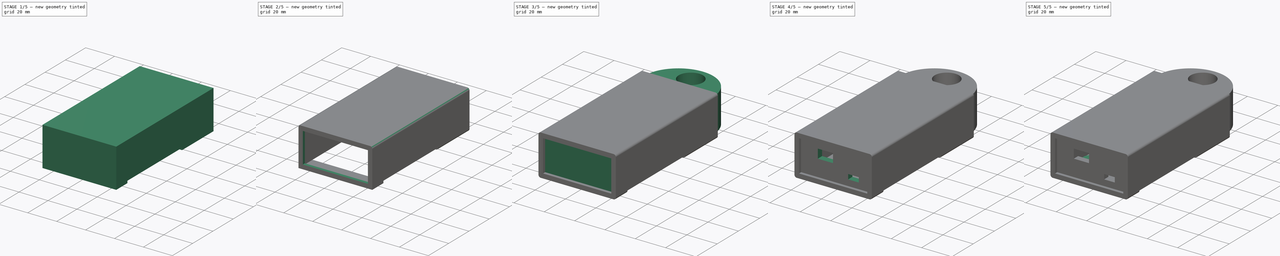
[diagram: build sequence overview — one tinted view per stage of 5, left to right]
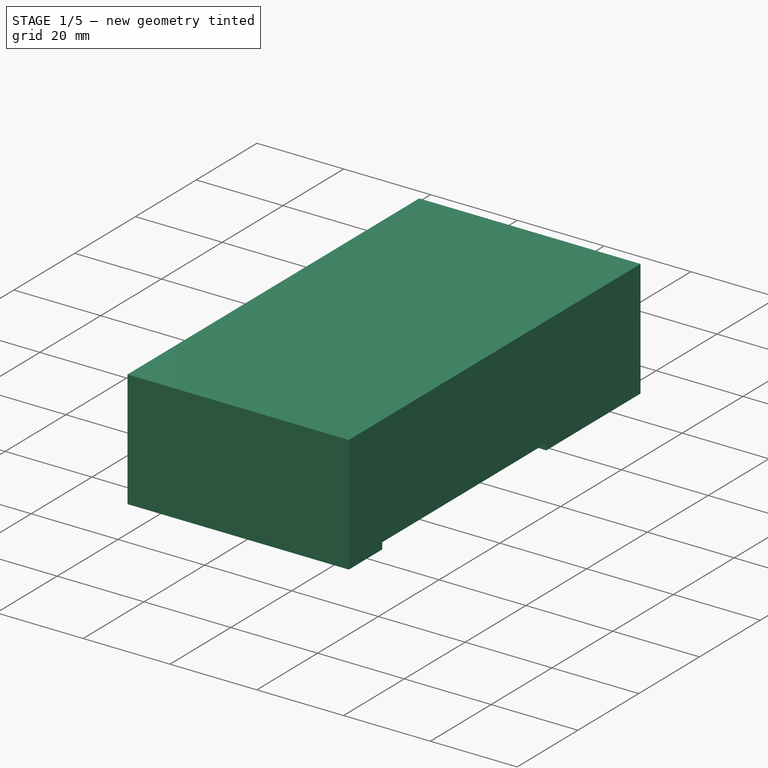
[diagram: stage 1 of 5 — iso view after this stage's code; geometry added in this stage tinted green]
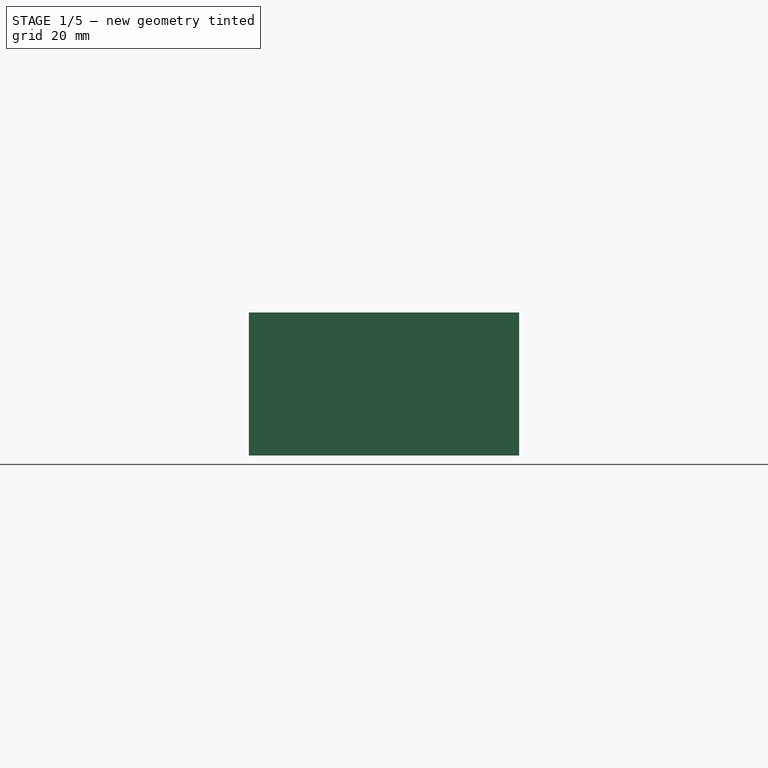
[diagram: stage 1 of 5 — front view after this stage's code; geometry added in this stage tinted green]
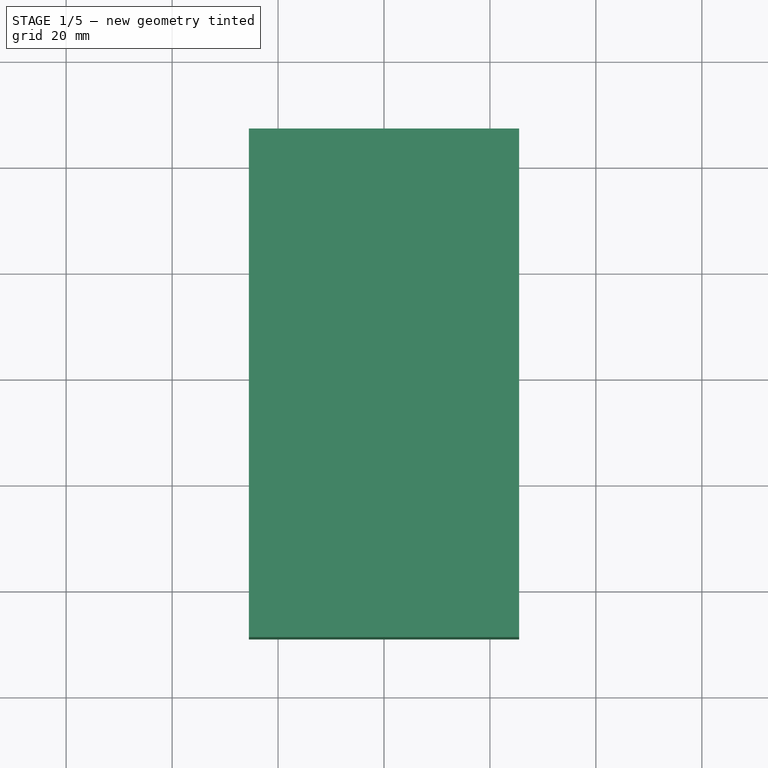
[diagram: stage 1 of 5 — top view after this stage's code; geometry added in this stage tinted green]
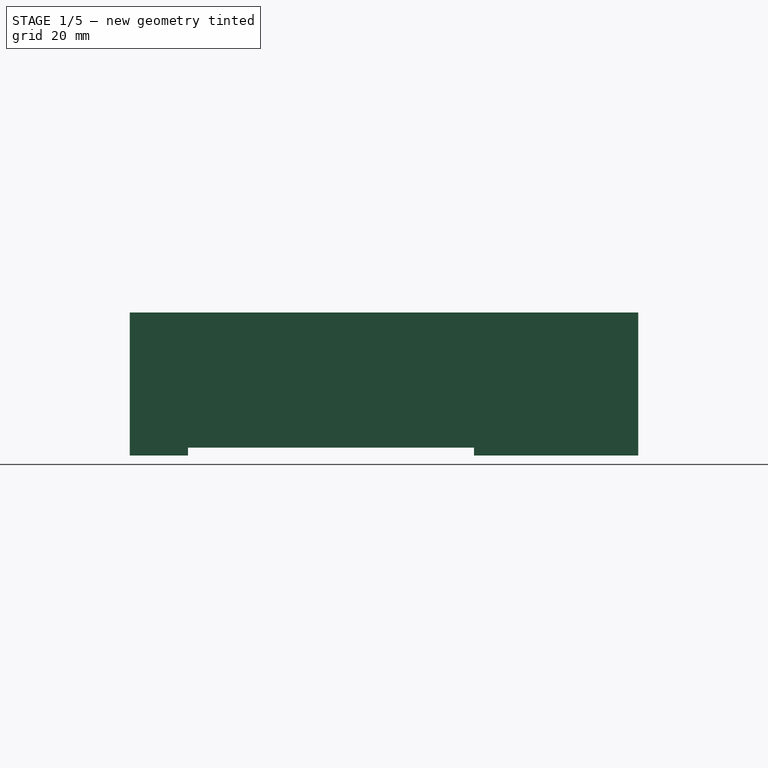
[diagram: stage 1 of 5 — right view after this stage's code; geometry added in this stage tinted green]
FCSTD DOCUMENT  (FreeCAD 0.19R24276 (Git))
Label: ThunderToGo
License: All rights reserved
LicenseURL: http://en.wikipedia.org/wiki/All_rights_reserved
objects: Sketcher::SketchObject×20, PartDesign::Pad×10, PartDesign::Pocket×10, PartDesign::Fillet×6, PartDesign::ShapeBinder×5, PartDesign::Body×5, PartDesign::Plane×4, PartDesign::Point×1
note: 87 computed .brp shape members not serialized (recipe doc carries the construction recipe); baked Part::Feature solids carry a one-line shape summary decoded from their .brp

FEATURE [PartDesign::Body] Body003  label="BackPlate"
  Group = -> [DatumPlane002,CopyPocket008,Sketch014,Pad005]
  Origin = -> Origin003
  Tip = -> Pad005
FEATURE [PartDesign::ShapeBinder] CopyPocket008001
  TraceSupport = false
FEATURE [PartDesign::Plane] DatumPlane003
  Length = 61.0995
  MapMode = 5
  Placement = pos=(0,-47,0) rot=(1,0,0;1.5708rad)
  ResizeMode = 0
  Support = -> [CopyPocket008001]
  Width = 60.0995
FEATURE [Sketcher::SketchObject] Sketch015
  ExternalGeometry = -> [CopyPocket008001]
  FullyConstrained = true
  MapMode = 5
  Placement = pos=(0,-47,0) rot=(1,0,0;1.5708rad)
  Support = -> [DatumPlane003]
  sketch-geometry (8):
    g0: LineSegment StartX=-23.5 StartY=23 StartZ=0 EndX=23.5 EndY=23 EndZ=0
    g1: LineSegment StartX=23.5 StartY=23 StartZ=0 EndX=23.5 EndY=-0.5 EndZ=0
    g2: LineSegment StartX=23.5 StartY=-0.5 StartZ=0 EndX=-23.5 EndY=-0.5 EndZ=0
    g3: LineSegment StartX=-23.5 StartY=-0.5 StartZ=0 EndX=-23.5 EndY=23 EndZ=0
    g4: LineSegment StartX=-25.5 StartY=25 StartZ=0 EndX=25.5 EndY=25 EndZ=0
    g5: LineSegment StartX=25.5 StartY=25 StartZ=0 EndX=25.5 EndY=-2 EndZ=0
    g6: LineSegment StartX=25.5 StartY=-2 StartZ=0 EndX=-25.5 EndY=-2 EndZ=0
    g7: LineSegment StartX=-25.5 StartY=-2 StartZ=0 EndX=-25.5 EndY=25 EndZ=0
  constraints (24):
    c: Coincident(g0,g1)
    c: Coincident(g1,g2)
    c: Coincident(g2,g3)
    c: Coincident(g3,g0)
    c: Horizontal(g0)
    c: Horizontal(g2)
    c: Vertical(g1)
    c: Vertical(g3)
    c: DistanceX(g-4,g0) = 0.5
    c: DistanceX(g0,g-6) = 0.5
    c: DistanceY(g2,g-6) = 0.5
    c: DistanceY(g-4,g0) = 3
    c: Coincident(g4,g5)
    c: Coincident(g5,g6)
    c: Coincident(g6,g7)
    c: Coincident(g7,g4)
    c: Horizontal(g4)
    c: Horizontal(g6)
    c: Vertical(g5)
    c: Vertical(g7)
    c: DistanceX(g1,g5) = 2
    c: DistanceX(g6,g2) = 2
    c: DistanceY(g0,g4) = 2
    c: DistanceY(g6,g-6) = 2
FEATURE [PartDesign::Pad] Pad006  label="LowerRim"
  Direction = (1,1,1)
  Length = 9
  Length2 = 100
  Placement = pos=(0,-47,0) rot=(1,0,0;1.5708rad)
  Profile = -> Sketch015
  Reversed = true
  Type = 0
FEATURE [Sketcher::SketchObject] Sketch016
  ExternalGeometry = -> [Pad006]
  FullyConstrained = true
  MapMode = 5
  Placement = pos=(0,-47,0) rot=(1,0,0;1.5708rad)
  Support = -> [DatumPlane003]
  sketch-geometry (4):
    g0: LineSegment StartX=-25.5 StartY=25 StartZ=0 EndX=25.5 EndY=25 EndZ=0
    g1: LineSegment StartX=25.5 StartY=25 StartZ=0 EndX=25.5 EndY=-2 EndZ=0
    g2: LineSegment StartX=25.5 StartY=-2 StartZ=0 EndX=-25.5 EndY=-2 EndZ=0
    g3: LineSegment StartX=-25.5 StartY=-2 StartZ=0 EndX=-25.5 EndY=25 EndZ=0
  constraints (10):
    c: Coincident(g0,g1)
    c: Coincident(g1,g2)
    c: Coincident(g2,g3)
    c: Coincident(g3,g0)
    c: Horizontal(g0)
    c: Horizontal(g2)
    c: Vertical(g1)
    c: Vertical(g3)
    c: Coincident(g0,g-3)
    c: Coincident(g1,g-4)
FEATURE [PartDesign::Pad] Pad007  label="Bottom"
  BaseFeature = -> Pad006
  Direction = (1,1,1)
  Length = 2
  Length2 = 100
  Placement = pos=(0,-47,0) rot=(1,0,0;1.5708rad)
  Profile = -> Sketch016
  Type = 0
FEATURE [Sketcher::SketchObject] Sketch017
  ExternalGeometry = -> [Pad007]
  FullyConstrained = true
  MapMode = 5
  Placement = pos=(0,-38,-4.3e-15) rot=(-1,0,0;1.5708rad)
  Support = -> [Pad007]
  sketch-geometry (8):
    g0: LineSegment StartX=23.5 StartY=0.5 StartZ=0 EndX=25.5 EndY=0.5 EndZ=0
    g1: LineSegment StartX=25.5 StartY=0.5 StartZ=0 EndX=25.5 EndY=-23 EndZ=0
    g2: LineSegment StartX=25.5 StartY=-23 StartZ=0 EndX=23.5 EndY=-23 EndZ=0
    g3: LineSegment StartX=23.5 StartY=-23 StartZ=0 EndX=23.5 EndY=0.5 EndZ=0
    g4: LineSegment StartX=-25.5 StartY=0.5 StartZ=0 EndX=-23.5 EndY=0.5 EndZ=0
    g5: LineSegment StartX=-23.5 StartY=0.5 StartZ=0 EndX=-23.5 EndY=-23 EndZ=0
    g6: LineSegment StartX=-23.5 StartY=-23 StartZ=0 EndX=-25.5 EndY=-23 EndZ=0
    g7: LineSegment StartX=-25.5 StartY=-23 StartZ=0 EndX=-25.5 EndY=0.5 EndZ=0
  constraints (20):
    c: Coincident(g0,g1)
    c: Coincident(g1,g2)
    c: Coincident(g2,g3)
    c: Coincident(g3,g0)
    c: Horizontal(g0)
    c: Horizontal(g2)
    c: Vertical(g1)
    c: Coincident(g0,g-4)
    c: Coincident(g2,g-4)
    c: DistanceX(g-3,g1) = 0
    c: Coincident(g4,g5)
    c: Coincident(g5,g6)
    c: Coincident(g6,g7)
    c: Coincident(g7,g4)
    c: Horizontal(g4)
    c: Horizontal(g6)
    c: Vertical(g7)
    c: Coincident(g5,g-5)
    c: Coincident(g4,g-5)
    c: DistanceX(g6,g-6) = 0
FEATURE [PartDesign::Pad] Pad008  label="SideWalls"
  BaseFeature = -> Pad007
  Direction = (1,1,1)
  Length = 54
  Length2 = 100
  Placement = pos=(0,-47,0) rot=(1,0,0;1.5708rad)
  Profile = -> Sketch017
  Type = 0
FEATURE [Sketcher::SketchObject] Sketch018
  ExternalGeometry = -> [Pad008]
  FullyConstrained = true
  MapMode = 5
  Placement = pos=(0,16,-3.29e-14) rot=(-1,0,0;1.5708rad)
  Support = -> [Pad008]
  sketch-geometry (8):
    g0: LineSegment StartX=-25.5 StartY=2 StartZ=0 EndX=25.5 EndY=2 EndZ=0
    g1: LineSegment StartX=25.5 StartY=2 StartZ=0 EndX=25.5 EndY=-25 EndZ=0
    g2: LineSegment StartX=25.5 StartY=-25 StartZ=0 EndX=-25.5 EndY=-25 EndZ=0
    g3: LineSegment StartX=-25.5 StartY=-25 StartZ=0 EndX=-25.5 EndY=2 EndZ=0
    g4: LineSegment StartX=-23.5 StartY=0.5 StartZ=0 EndX=23.5 EndY=0.5 EndZ=0
    g5: LineSegment StartX=23.5 StartY=0.5 StartZ=0 EndX=23.5 EndY=-23 EndZ=0
    g6: LineSegment StartX=23.5 StartY=-23 StartZ=0 EndX=-23.5 EndY=-23 EndZ=0
    g7: LineSegment StartX=-23.5 StartY=-23 StartZ=0 EndX=-23.5 EndY=0.5 EndZ=0
  constraints (20):
    c: Coincident(g0,g1)
    c: Coincident(g1,g2)
    c: Coincident(g2,g3)
    c: Coincident(g3,g0)
    c: Horizontal(g0)
    c: Horizontal(g2)
    c: Vertical(g1)
    c: Vertical(g3)
    c: Coincident(g0,g-5)
    c: Coincident(g1,g-6)
    c: Coincident(g4,g5)
    c: Coincident(g5,g6)
    c: Coincident(g6,g7)
    c: Coincident(g7,g4)
    c: Horizontal(g4)
    c: Horizontal(g6)
    c: Vertical(g5)
    c: Vertical(g7)
    c: Coincident(g4,g-7)
    c: Coincident(g5,g-9)
FEATURE [PartDesign::Pad] Pad009  label="TopSleeve"
  BaseFeature = -> Pad008
  Direction = (1,1,1)
  Length = 31
  Length2 = 100
  Placement = pos=(0,-47,0) rot=(1,0,0;1.5708rad)
  Profile = -> Sketch018
  Type = 0
FEATURE [Sketcher::SketchObject] Sketch019
  ExternalGeometry = -> [Pad009]
  FullyConstrained = true
  MapMode = 5
  Placement = pos=(0,-47,23) rot=(0,0,1;3.14159rad)
  Support = -> [Pad009]
  sketch-geometry (4):
    g0: LineSegment StartX=-25.5 StartY=-9 StartZ=0 EndX=25.5 EndY=-9 EndZ=0
    g1: LineSegment StartX=25.5 StartY=-9 StartZ=0 EndX=25.5 EndY=-63 EndZ=0
    g2: LineSegment StartX=25.5 StartY=-63 StartZ=0 EndX=-25.5 EndY=-63 EndZ=0
    g3: LineSegment StartX=-25.5 StartY=-63 StartZ=0 EndX=-25.5 EndY=-9 EndZ=0
  constraints (12):
    c: Coincident(g0,g1)
    c: Coincident(g1,g2)
    c: Coincident(g2,g3)
    c: Coincident(g3,g0)
    c: Horizontal(g0)
    c: Horizontal(g2)
    c: Vertical(g1)
    c: Vertical(g3)
    c: PointOnObject(g0,g-4)
    c: PointOnObject(g0,g-3)
    c: PointOnObject(g0,g-6)
    c: PointOnObject(g2,g-5)
FEATURE [PartDesign::Pad] Pad010  label="Back"
  BaseFeature = -> Pad009
  Direction = (1,1,1)
  Length = 2
  Length2 = 100
  Placement = pos=(0,-47,0) rot=(1,0,0;1.5708rad)
  Profile = -> Sketch019
  Type = 0
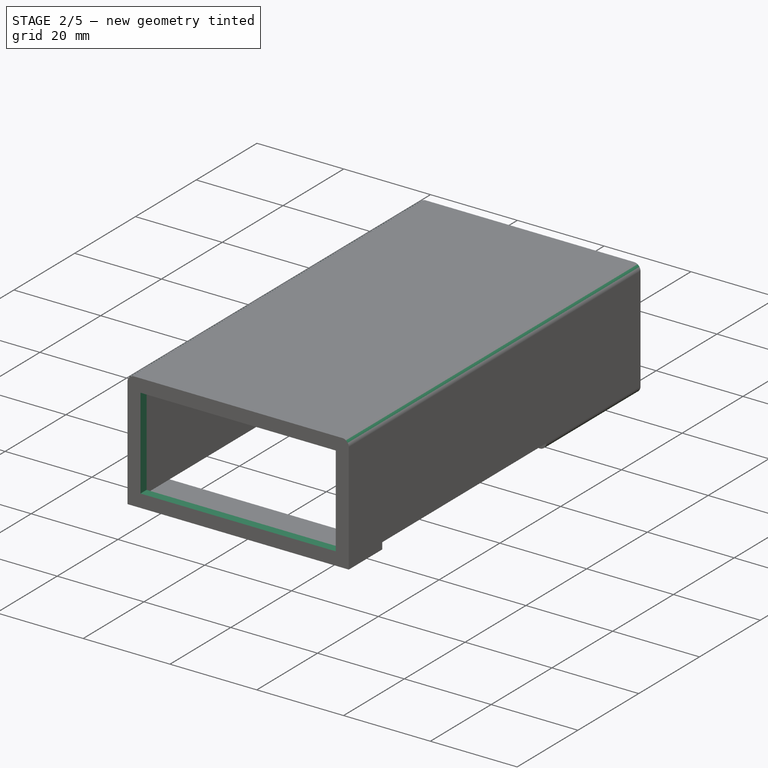
[diagram: stage 2 of 5 — iso view after this stage's code; geometry added in this stage tinted green]
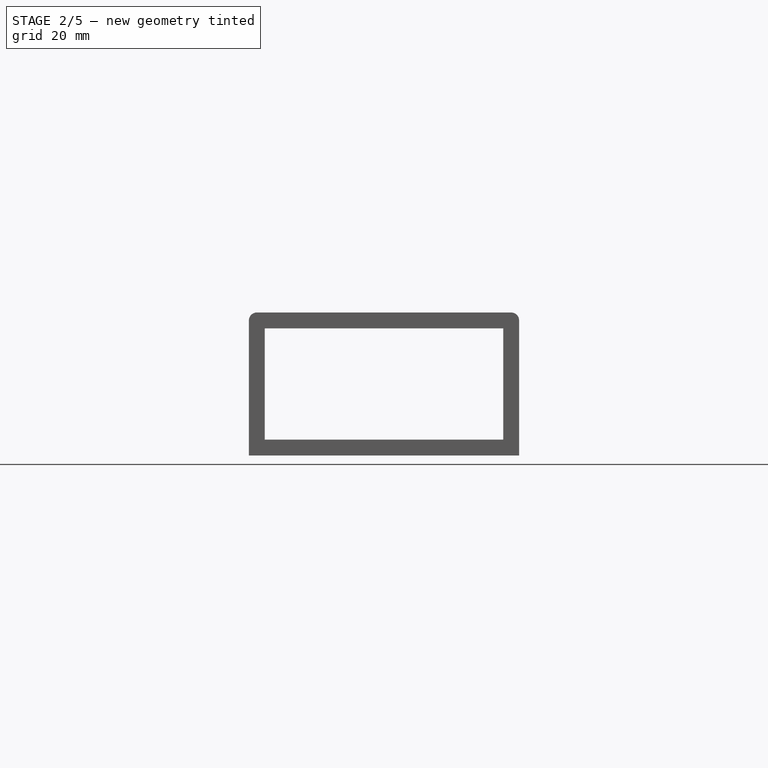
[diagram: stage 2 of 5 — front view after this stage's code; geometry added in this stage tinted green]
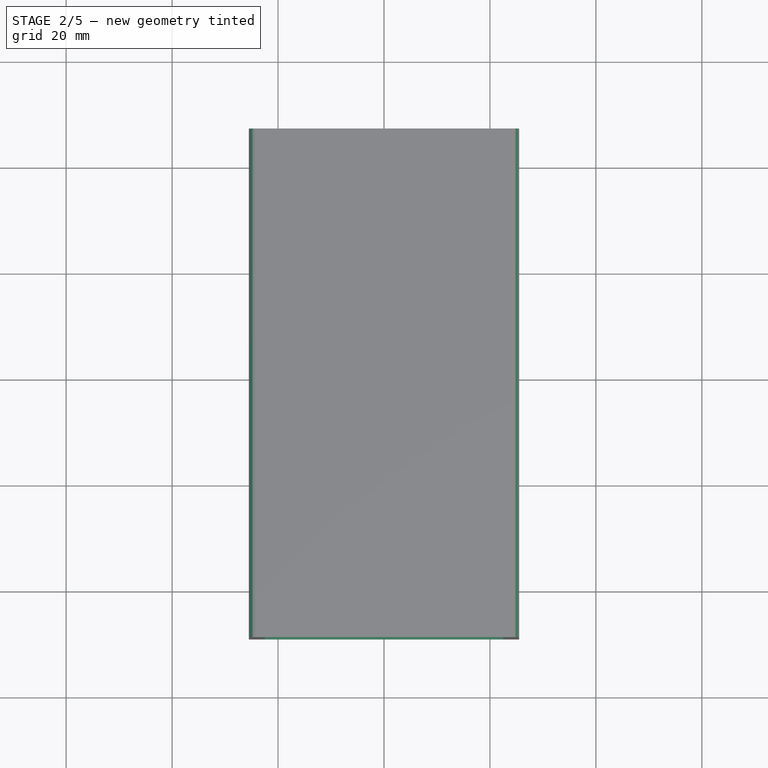
[diagram: stage 2 of 5 — top view after this stage's code; geometry added in this stage tinted green]
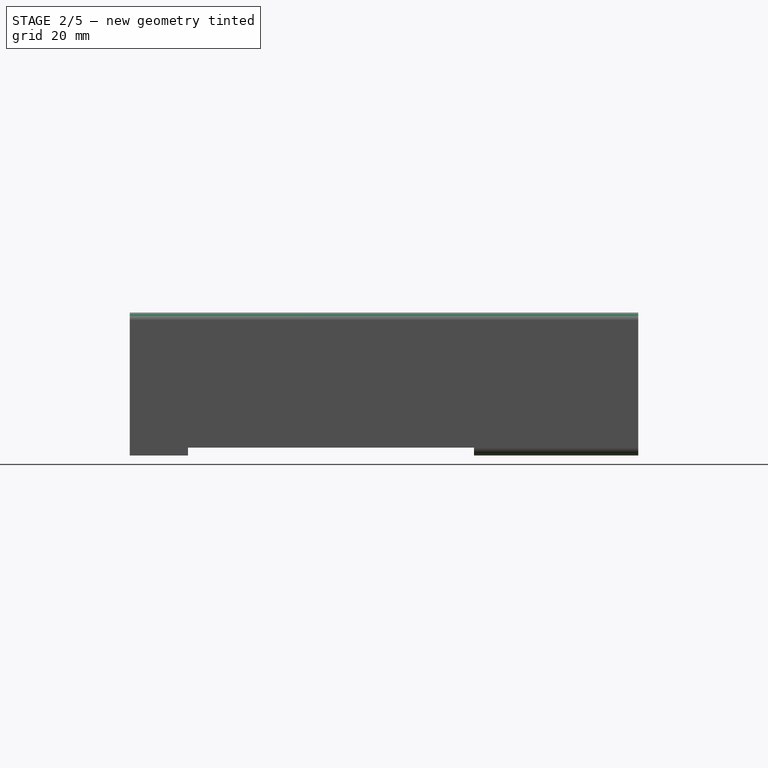
[diagram: stage 2 of 5 — right view after this stage's code; geometry added in this stage tinted green]
FEATURE [Sketcher::SketchObject] Sketch020
  ExternalGeometry = -> [Pad010]
  FullyConstrained = true
  MapMode = 5
  Placement = pos=(0,-49,1.4e-15) rot=(1,0,0;1.5708rad)
  Support = -> [Pad010]
  sketch-geometry (4):
    g0: LineSegment StartX=-22.5 StartY=22 StartZ=0 EndX=22.5 EndY=22 EndZ=0
    g1: LineSegment StartX=22.5 StartY=22 StartZ=0 EndX=22.5 EndY=1 EndZ=0
    g2: LineSegment StartX=22.5 StartY=1 StartZ=0 EndX=-22.5 EndY=1 EndZ=0
    g3: LineSegment StartX=-22.5 StartY=1 StartZ=0 EndX=-22.5 EndY=22 EndZ=0
  constraints (12):
    c: Coincident(g0,g1)
    c: Coincident(g1,g2)
    c: Coincident(g2,g3)
    c: Coincident(g3,g0)
    c: Horizontal(g0)
    c: Horizontal(g2)
    c: Vertical(g1)
    c: Vertical(g3)
    c: DistanceY(g0,g-4) = 3
    c: DistanceX(g1,g-3) = 3
    c: DistanceX(g-3,g2) = 3
    c: DistanceY(g-3,g2) = 3
FEATURE [PartDesign::Pocket] Pocket009
  BaseFeature = -> Pad010
  Length = 5
  Length2 = 100
  Placement = pos=(0,-47,0) rot=(1,0,0;1.5708rad)
  Profile = -> Sketch020
  Type = 0
FEATURE [PartDesign::Fillet] Fillet
  Base = -> Pocket009 [Edge53]
  BaseFeature = -> Pocket009
  Placement = pos=(0,-47,0) rot=(1,0,0;1.5708rad)
  Radius = 1.5
  SupportTransform = false
FEATURE [PartDesign::Fillet] Fillet001
  Base = -> Fillet [Edge24]
  BaseFeature = -> Fillet
  Placement = pos=(0,-47,0) rot=(1,0,0;1.5708rad)
  Radius = 1.5
  SupportTransform = false
FEATURE [PartDesign::Fillet] Fillet002
  Base = -> Fillet001 [Edge21]
  BaseFeature = -> Fillet001
  Placement = pos=(0,-47,0) rot=(1,0,0;1.5708rad)
  Radius = 1.5
  SupportTransform = false
FEATURE [PartDesign::Fillet] Fillet003
  Base = -> Fillet002 [Edge21]
  BaseFeature = -> Fillet002
  Placement = pos=(0,-47,0) rot=(1,0,0;1.5708rad)
  Radius = 1.5
  SupportTransform = false
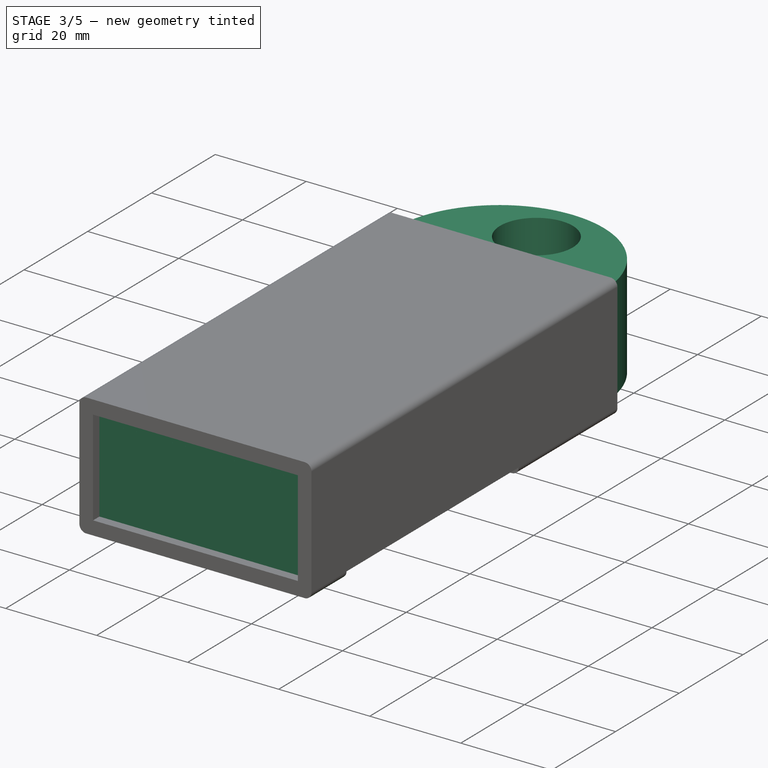
[diagram: stage 3 of 5 — iso view after this stage's code; geometry added in this stage tinted green]
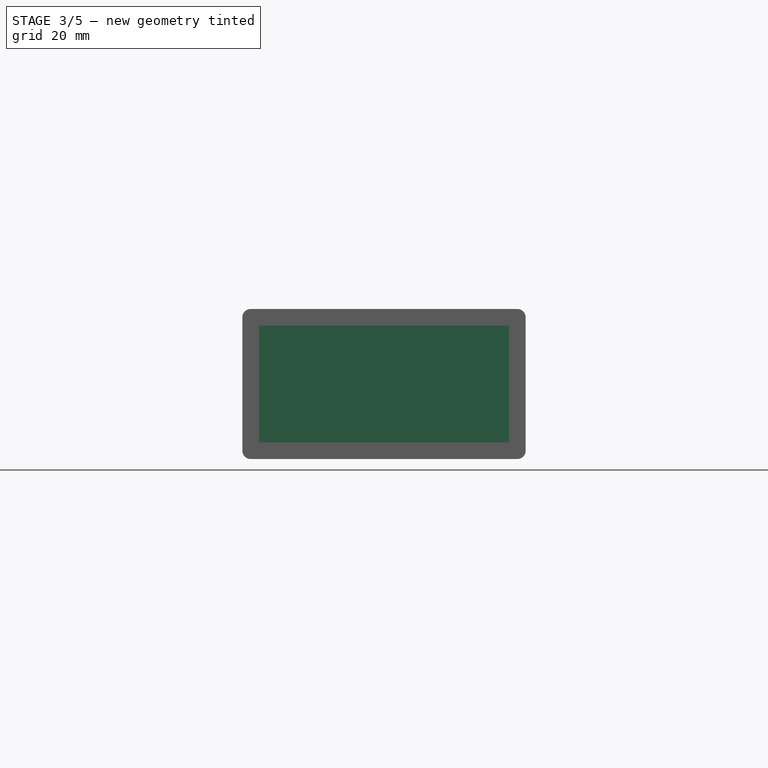
[diagram: stage 3 of 5 — front view after this stage's code; geometry added in this stage tinted green]
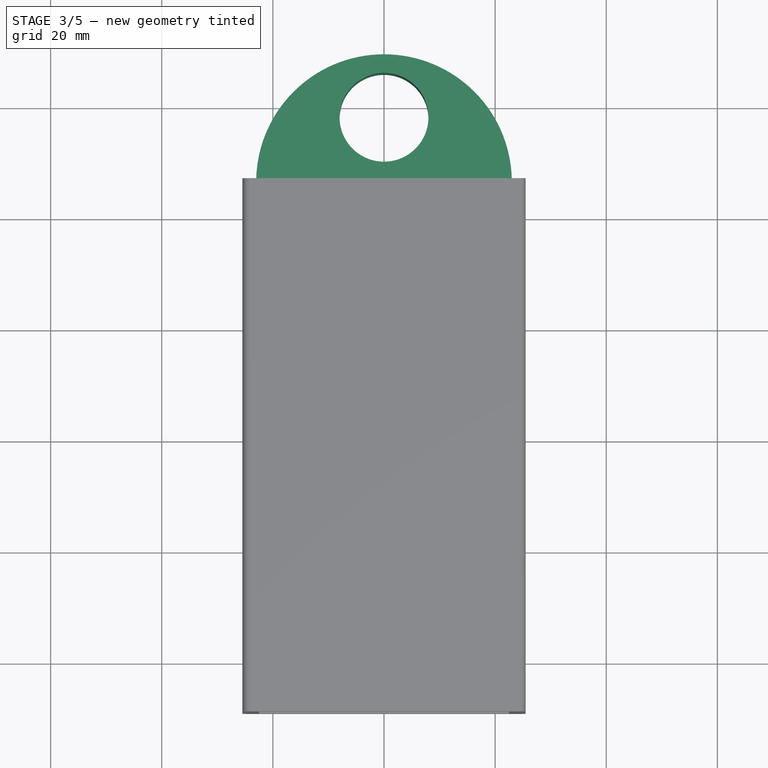
[diagram: stage 3 of 5 — top view after this stage's code; geometry added in this stage tinted green]
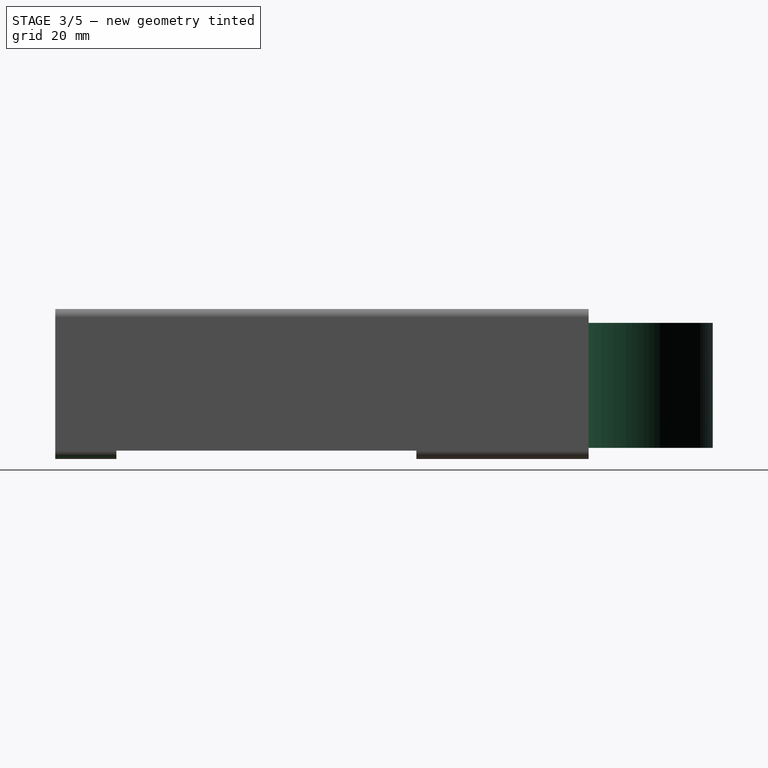
[diagram: stage 3 of 5 — right view after this stage's code; geometry added in this stage tinted green]
FEATURE [Sketcher::SketchObject] Sketch
  FullyConstrained = true
  MapMode = 5
  Support = -> [XY_Plane]
  sketch-geometry (5):
    g0: LineSegment StartX=23 StartY=47 StartZ=0 EndX=23 EndY=-47 EndZ=0
    g1: LineSegment StartX=23 StartY=-47 StartZ=0 EndX=-23 EndY=-47 EndZ=0
    g2: LineSegment StartX=-23 StartY=-47 StartZ=0 EndX=-23 EndY=47 EndZ=0
    g3: LineSegment StartX=0 StartY=46.3317 StartZ=0 EndX=0 EndY=69.3317 EndZ=0
    g4: ArcOfCircle CenterX=1.1e-15 CenterY=46.3217 CenterZ=0 NormalX=0 NormalY=0 NormalZ=1 AngleXU=0 Radius=23.01 StartAngle=0.0294831 EndAngle=3.11211
  constraints (15):
    c: Coincident(g0,g1)
    c: Coincident(g1,g2)
    c: Horizontal(g1)
    c: Vertical(g2)
    c: DistanceX(g2,g0) = 46
    c: DistanceY(g0,g0) = 94
    c: Symmetric(g2,g0,g-2)
    c: Symmetric(g0,g0,g-1)
    c: Vertical(g3)
    c: DistanceY(g3,g3) = 23
    c: PointOnObject(g3,g-2)
    c: Coincident(g4,g2)
    c: Coincident(g4,g0)
    c: PointOnObject(g3,g4)
    c: Radius(g4) = 23.01
FEATURE [PartDesign::Pad] Pad  label="MainVolume"
  Direction = (1,1,1)
  Length = 20
  Length2 = 100
  Profile = -> Sketch
  Type = 0
FEATURE [Sketcher::SketchObject] Sketch001
  ExternalGeometry = -> [Pad]
  FullyConstrained = true
  MapMode = 5
  Placement = pos=(0,0,20) rot=(0,0,1;0rad)
  Support = -> [Pad]
  sketch-geometry (3):
    g0: LineSegment StartX=-23 StartY=47 StartZ=0 EndX=23 EndY=47 EndZ=0
    g1: LineSegment StartX=0 StartY=47 StartZ=0 EndX=0 EndY=58 EndZ=0
    g2: Circle CenterX=0 CenterY=58 CenterZ=0 NormalX=0 NormalY=0 NormalZ=1 AngleXU=0 Radius=8
  constraints (8):
    c: Coincident(g0,g-3)
    c: Coincident(g0,g-3)
    c: PointOnObject(g1,g0)
    c: Vertical(g1)
    c: PointOnObject(g1,g-2)
    c: DistanceY(g1,g1) = 11
    c: Coincident(g2,g1)
    c: Radius(g2) = 8
FEATURE [PartDesign::Pocket] Pocket  label="HookHole"
  BaseFeature = -> Pad
  Length = 5
  Length2 = 100
  Profile = -> Sketch001
  Type = 1
FEATURE [Sketcher::SketchObject] Sketch002
  FullyConstrained = true
  MapMode = 5
  Placement = pos=(0,0,20) rot=(0,0,1;0rad)
  Support = -> [Pocket]
  sketch-geometry (4):
    g0: LineSegment StartX=-20.5 StartY=43 StartZ=0 EndX=20.5 EndY=43 EndZ=0
    g1: LineSegment StartX=20.5 StartY=43 StartZ=0 EndX=20.5 EndY=-43 EndZ=0
    g2: LineSegment StartX=20.5 StartY=-43 StartZ=0 EndX=-20.5 EndY=-43 EndZ=0
    g3: LineSegment StartX=-20.5 StartY=-43 StartZ=0 EndX=-20.5 EndY=43 EndZ=0
  constraints (10):
    c: Coincident(g0,g1)
    c: Coincident(g1,g2)
    c: Coincident(g2,g3)
    c: Coincident(g3,g0)
    c: Horizontal(g2)
    c: Vertical(g3)
    c: Symmetric(g0,g0,g-2)
    c: Symmetric(g0,g1,g-1)
    c: DistanceX(g2,g2) = 41
    c: DistanceY(g1,g1) = 86
FEATURE [PartDesign::Pocket] Pocket001  label="BoardCavity"
  BaseFeature = -> Pocket
  Length = 18
  Length2 = 100
  Profile = -> Sketch002
  Type = 0
FEATURE [PartDesign::Body] Body
  Group = -> [Sketch,Pad,Sketch001,Pocket,Sketch002,Pocket001,Sketch003,Pocket002,Sketch004,Pocket003,Sketch005,Pocket004,Sketch006,Pocket005,Sketch007,Pocket006,Sketch012,Pocket007,Sketch013,Pocket008]
  Origin = -> Origin
  Tip = -> Pocket008
FEATURE [PartDesign::ShapeBinder] CopyPocket008
  TraceSupport = false
FEATURE [PartDesign::Plane] DatumPlane002
  Length = 65.2453
  MapMode = 5
  Placement = pos=(0,0,20) rot=(0,0,1;0rad)
  ResizeMode = 0
  Support = -> [CopyPocket008]
  Width = 131.456
FEATURE [Sketcher::SketchObject] Sketch014
  ExternalGeometry = -> [CopyPocket008]
  FullyConstrained = true
  MapMode = 5
  Placement = pos=(0,0,20) rot=(0,0,1;0rad)
  Support = -> [DatumPlane002]
  sketch-geometry (5):
    g0: Circle CenterX=0 CenterY=58 CenterZ=0 NormalX=0 NormalY=0 NormalZ=1 AngleXU=0 Radius=8
    g1: LineSegment StartX=-23 StartY=47 StartZ=0 EndX=-23 EndY=-47 EndZ=0
    g2: LineSegment StartX=-23 StartY=-47 StartZ=0 EndX=23 EndY=-47 EndZ=0
    g3: LineSegment StartX=23 StartY=-47 StartZ=0 EndX=23 EndY=47 EndZ=0
    g4: ArcOfCircle CenterX=1.3e-15 CenterY=46.3217 CenterZ=0 NormalX=0 NormalY=0 NormalZ=1 AngleXU=0 Radius=23.01 StartAngle=0.0294831 EndAngle=3.11211
  constraints (11):
    c: Coincident(g0,g-4)
    c: Diameter(g0) = 16
    c: Coincident(g1,g-7)
    c: Coincident(g1,g-7)
    c: Coincident(g2,g1)
    c: Coincident(g2,g-6)
    c: Coincident(g3,g2)
    c: Coincident(g3,g-5)
    c: Coincident(g4,g1)
    c: Coincident(g4,g3)
    c: Tangent(g4,g-5)
FEATURE [PartDesign::Pad] Pad005  label="MainBody"
  Direction = (1,1,1)
  Length = 2.5
  Length2 = 100
  Placement = pos=(0,0,20) rot=(0,0,1;0rad)
  Profile = -> Sketch014
  Type = 0
FEATURE [PartDesign::Fillet] Fillet004
  Base = -> Fillet003 [Edge71]
  BaseFeature = -> Fillet003
  Placement = pos=(0,-47,0) rot=(1,0,0;1.5708rad)
  Radius = 1.5
  SupportTransform = false
FEATURE [PartDesign::Fillet] Fillet005
  Base = -> Fillet004 [Edge33]
  BaseFeature = -> Fillet004
  Placement = pos=(0,-47,0) rot=(1,0,0;1.5708rad)
  Radius = 1.5
  SupportTransform = false
FEATURE [PartDesign::Body] Body004  label="Sleeve"
  Group = -> [DatumPlane003,CopyPocket008001,Sketch015,Pad006,Sketch016,Pad007,Sketch017,Pad008,Sketch018,Pad009,Sketch019,Pad010,Sketch020,Pocket009,Fillet,Fillet001,Fillet002,Fillet003,Fillet004,Fillet005]
  Origin = -> Origin004
  Tip = -> Fillet005
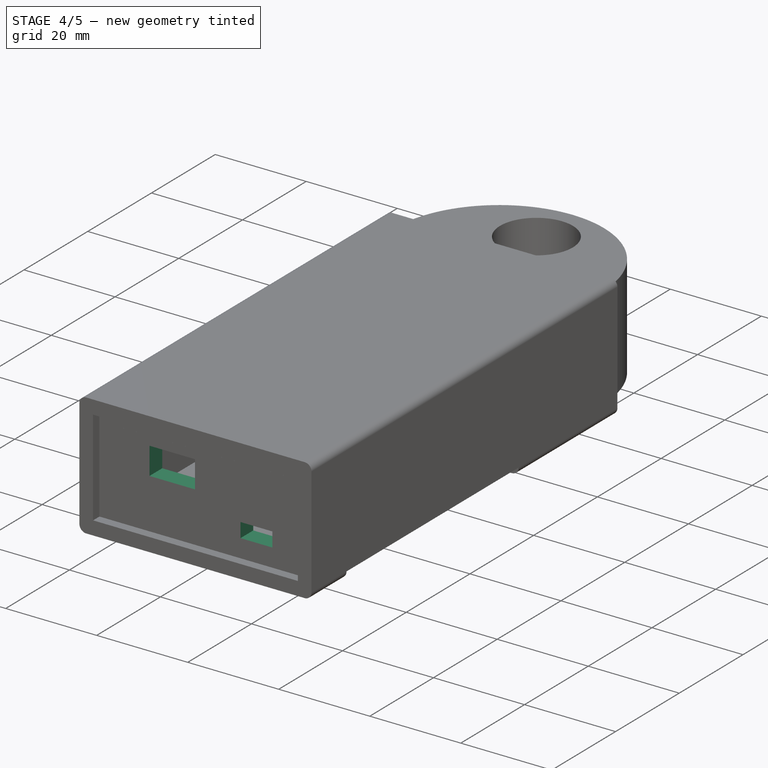
[diagram: stage 4 of 5 — iso view after this stage's code; geometry added in this stage tinted green]
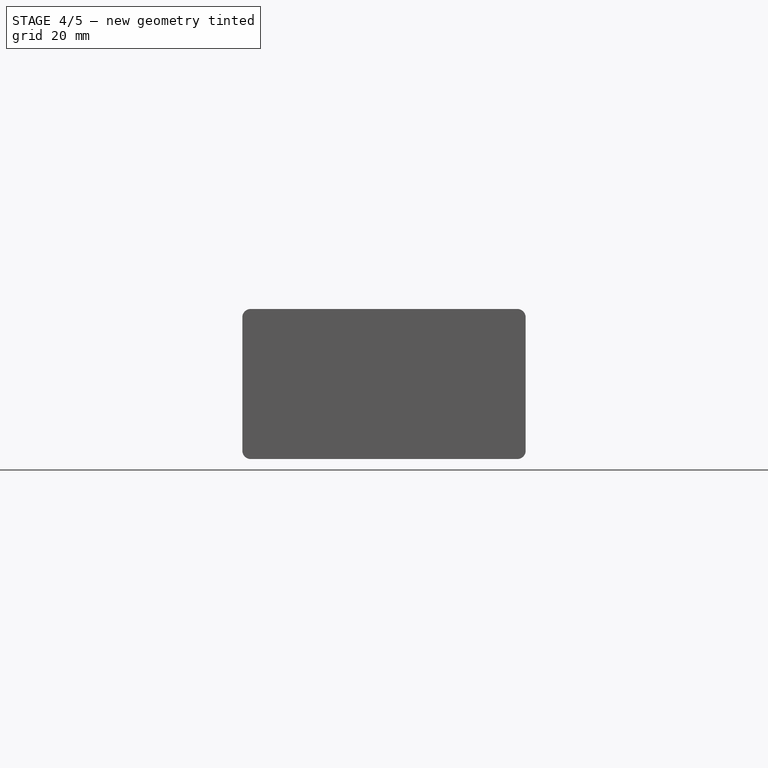
[diagram: stage 4 of 5 — front view after this stage's code; geometry added in this stage tinted green]
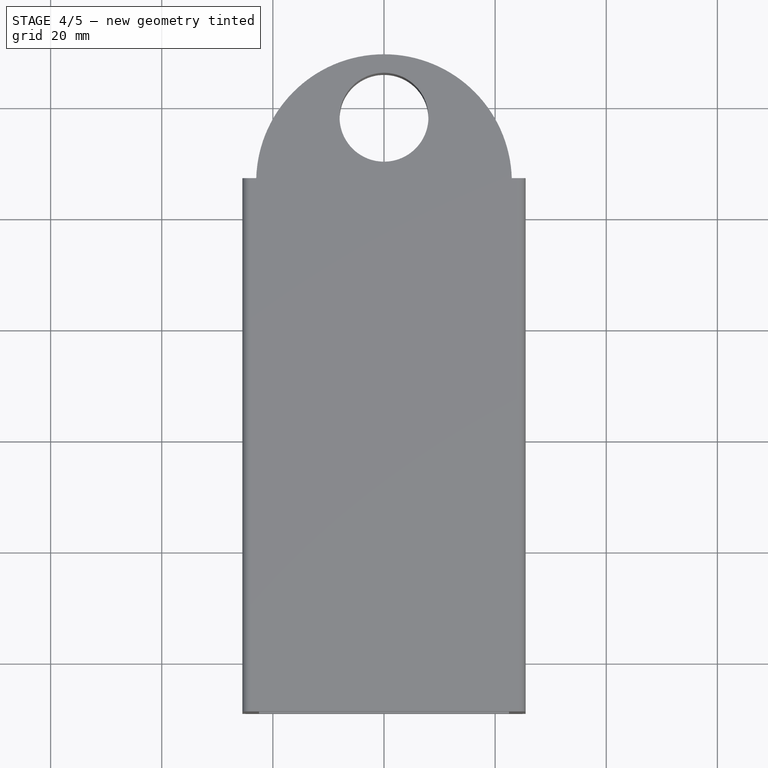
[diagram: stage 4 of 5 — top view after this stage's code; geometry added in this stage tinted green]
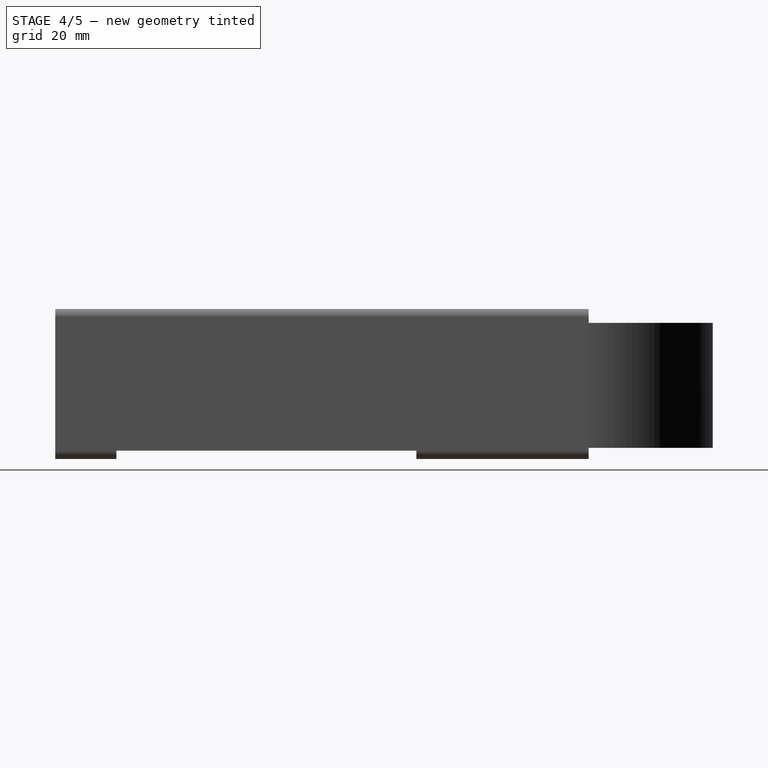
[diagram: stage 4 of 5 — right view after this stage's code; geometry added in this stage tinted green]
FEATURE [Sketcher::SketchObject] Sketch003
  ExternalGeometry = -> [Pocket001]
  FullyConstrained = true
  MapMode = 5
  Placement = pos=(0,0,2) rot=(0,0,1;0rad)
  Support = -> [Pocket001]
  sketch-geometry (4):
    g0: LineSegment StartX=-13 StartY=3.5 StartZ=0 EndX=13 EndY=3.5 EndZ=0
    g1: LineSegment StartX=13 StartY=3.5 StartZ=0 EndX=13 EndY=-11 EndZ=0
    g2: LineSegment StartX=13 StartY=-11 StartZ=0 EndX=-13 EndY=-11 EndZ=0
    g3: LineSegment StartX=-13 StartY=-11 StartZ=0 EndX=-13 EndY=3.5 EndZ=0
  constraints (11):
    c: Coincident(g0,g1)
    c: Coincident(g1,g2)
    c: Coincident(g2,g3)
    c: Coincident(g3,g0)
    c: Horizontal(g2)
    c: Vertical(g1)
    c: Vertical(g3)
    c: DistanceY(g-4,g1) = 32
    c: DistanceY(g1,g1) = 14.5
    c: DistanceX(g0,g0) = 26
    c: Symmetric(g0,g0,g-2)
FEATURE [PartDesign::Pocket] Pocket002  label="DisplayWindow"
  BaseFeature = -> Pocket001
  Length = 5
  Length2 = 100
  Profile = -> Sketch003
  Type = 0
FEATURE [Sketcher::SketchObject] Sketch004
  ExternalGeometry = -> [Pocket002]
  FullyConstrained = true
  MapMode = 5
  Placement = pos=(0,0,2) rot=(0,0,1;0rad)
  Support = -> [Pocket002]
  sketch-geometry (1):
    g0: Circle CenterX=0 CenterY=-27 CenterZ=0 NormalX=0 NormalY=0 NormalZ=1 AngleXU=0 Radius=4
  constraints (3):
    c: DistanceY(g-3,g0) = 16
    c: PointOnObject(g0,g-2)
    c: Radius(g0) = 4
FEATURE [PartDesign::Pocket] Pocket003  label="ButtonOpening"
  BaseFeature = -> Pocket002
  Length = 5
  Length2 = 100
  Profile = -> Sketch004
  Type = 0
FEATURE [Sketcher::SketchObject] Sketch005
  ExternalGeometry = -> [Pocket003]
  FullyConstrained = true
  MapMode = 5
  Placement = pos=(0,-43,0) rot=(0,0.707107,0.707107;3.14159rad)
  Support = -> [Pocket003]
  sketch-geometry (4):
    g0: LineSegment StartX=-15.5 StartY=8.2 StartZ=0 EndX=-8.5 EndY=8.2 EndZ=0
    g1: LineSegment StartX=-8.5 StartY=8.2 StartZ=0 EndX=-8.5 EndY=5 EndZ=0
    g2: LineSegment StartX=-8.5 StartY=5 StartZ=0 EndX=-15.5 EndY=5 EndZ=0
    g3: LineSegment StartX=-15.5 StartY=5 StartZ=0 EndX=-15.5 EndY=8.2 EndZ=0
  constraints (12):
    c: Coincident(g0,g1)
    c: Coincident(g1,g2)
    c: Coincident(g2,g3)
    c: Coincident(g3,g0)
    c: Horizontal(g0)
    c: Horizontal(g2)
    c: Vertical(g1)
    c: Vertical(g3)
    c: DistanceX(g-4,g2) = 5
    c: DistanceY(g-4,g2) = 3
    c: DistanceY(g1,g1) = 3.2
    c: DistanceX(g0,g0) = 7
FEATURE [PartDesign::Pocket] Pocket004  label="SwitchHole"
  BaseFeature = -> Pocket003
  Length = 5
  Length2 = 100
  Profile = -> Sketch005
  Type = 1
FEATURE [Sketcher::SketchObject] Sketch006
  ExternalGeometry = -> [Pocket004]
  FullyConstrained = true
  MapMode = 5
  Placement = pos=(0,-43,0) rot=(0,0.707107,0.707107;3.14159rad)
  Support = -> [Pocket004]
  sketch-geometry (4):
    g0: LineSegment StartX=1.5 StartY=18 StartZ=0 EndX=11.5 EndY=18 EndZ=0
    g1: LineSegment StartX=11.5 StartY=18 StartZ=0 EndX=11.5 EndY=12 EndZ=0
    g2: LineSegment StartX=11.5 StartY=12 StartZ=0 EndX=1.5 EndY=12 EndZ=0
    g3: LineSegment StartX=1.5 StartY=12 StartZ=0 EndX=1.5 EndY=18 EndZ=0
  constraints (12):
    c: Coincident(g0,g1)
    c: Coincident(g1,g2)
    c: Coincident(g2,g3)
    c: Coincident(g3,g0)
    c: Horizontal(g0)
    c: Horizontal(g2)
    c: Vertical(g1)
    c: Vertical(g3)
    c: DistanceX(g0,g-3) = 9
    c: DistanceY(g-4,g1) = 10
    c: DistanceX(g0,g0) = 10
    c: DistanceY(g3,g3) = 6
FEATURE [PartDesign::Pocket] Pocket005  label="USBHole"
  BaseFeature = -> Pocket004
  Length = 5
  Length2 = 100
  Profile = -> Sketch006
  Type = 1
FEATURE [Sketcher::SketchObject] Sketch007
  ExternalGeometry = -> [Pocket005]
  FullyConstrained = true
  MapMode = 5
  Placement = pos=(0,0,2) rot=(0,0,1;0rad)
  Support = -> [Pocket005]
  sketch-geometry (1):
    g0: Circle CenterX=-13.5 CenterY=-28 CenterZ=0 NormalX=0 NormalY=0 NormalZ=1 AngleXU=0 Radius=2.5
  constraints (3):
    c: DistanceX(g-4,g0) = 7
    c: DistanceY(g-4,g0) = 15
    c: Diameter(g0) = 5
FEATURE [PartDesign::Pocket] Pocket006  label="LEDHole"
  BaseFeature = -> Pocket005
  Length = 5
  Length2 = 100
  Profile = -> Sketch007
  Type = 1
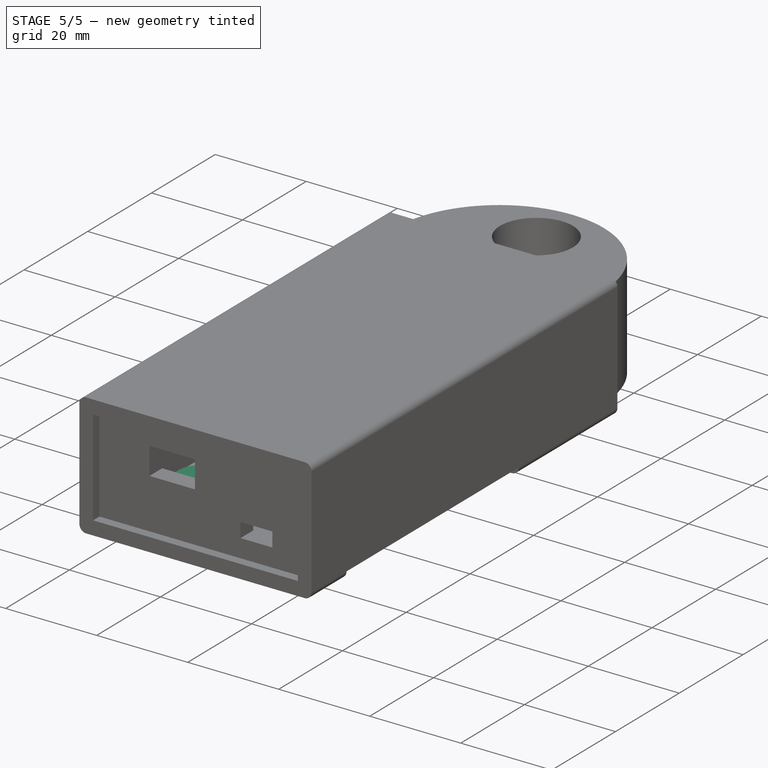
[diagram: stage 5 of 5 — iso view after this stage's code; geometry added in this stage tinted green]
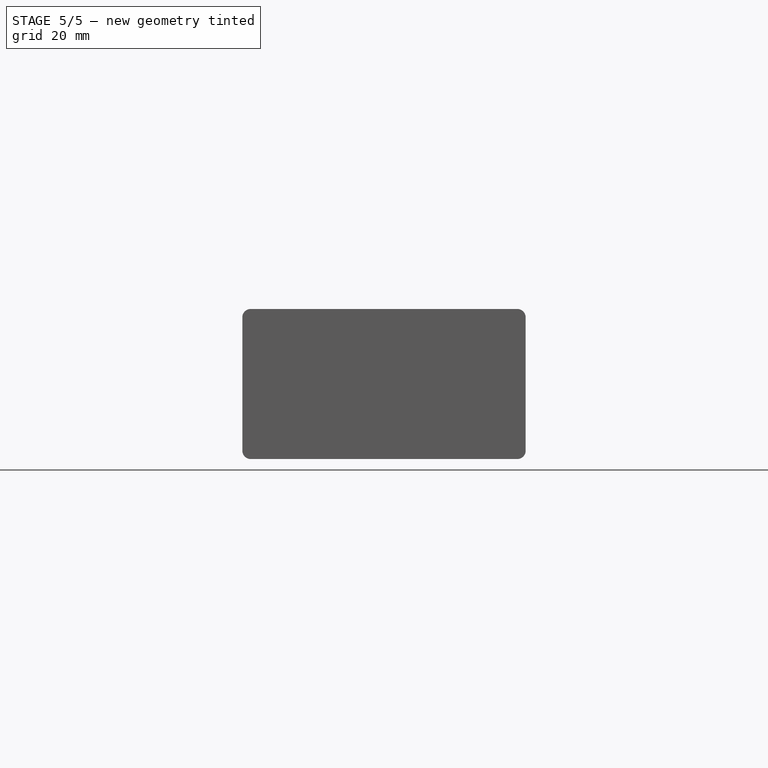
[diagram: stage 5 of 5 — front view after this stage's code; geometry added in this stage tinted green]
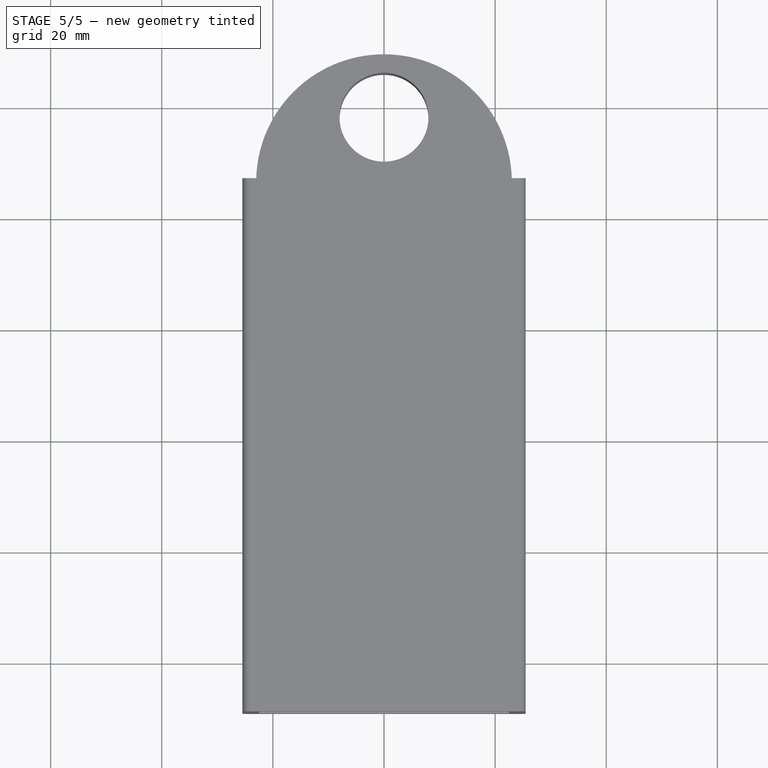
[diagram: stage 5 of 5 — top view after this stage's code; geometry added in this stage tinted green]
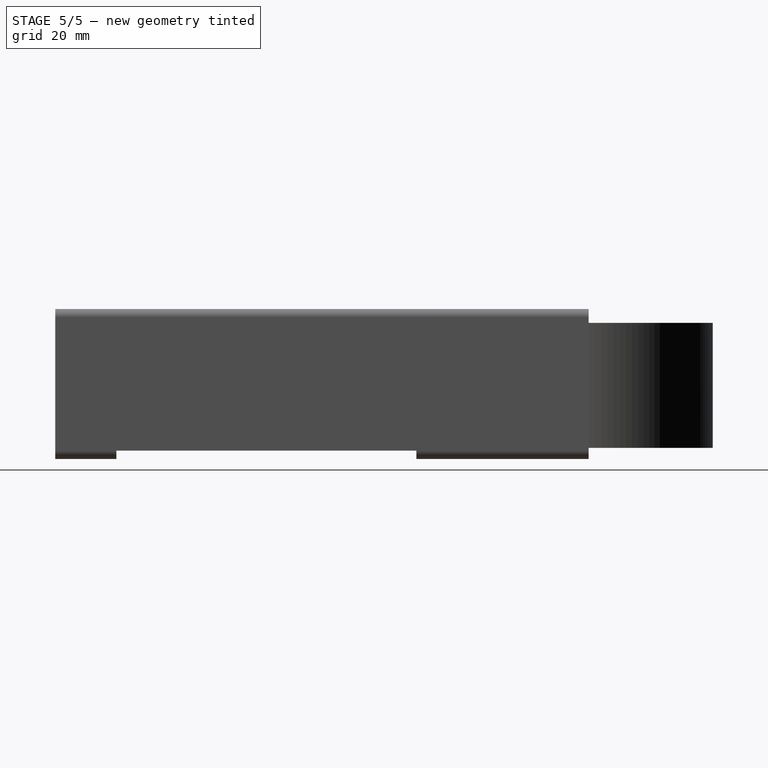
[diagram: stage 5 of 5 — right view after this stage's code; geometry added in this stage tinted green]
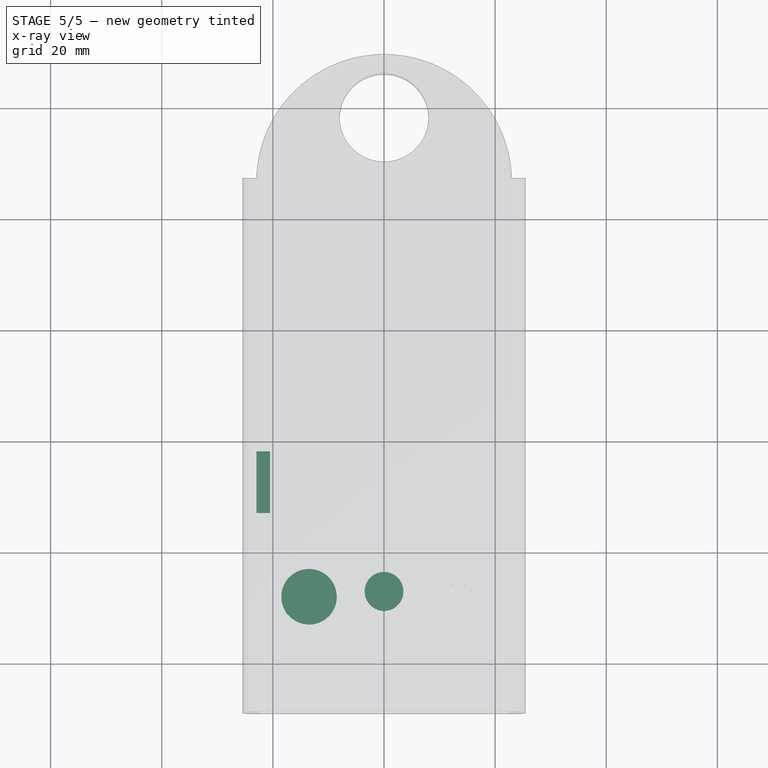
[diagram: stage 5 of 5 — x-ray composite at the top view; earlier geometry ghosted, this stage's added geometry solid]
FEATURE [PartDesign::ShapeBinder] CopyPocket006  label="BodyInnerFaceCopy"
  TraceSupport = false
FEATURE [PartDesign::Plane] DatumPlane  label="BodyInnerFaceDatumPlane"
  Length = 60.7703
  MapMode = 5
  Placement = pos=(0,0,2) rot=(0,0,1;0rad)
  ResizeMode = 0
  Support = -> [CopyPocket006]
  Width = 68.7703
FEATURE [PartDesign::ShapeBinder] CopyPocket006001  label="LedHoleCopy"
  Placement = pos=(0,0,2) rot=(0,0,1;0rad)
  TraceSupport = false
FEATURE [PartDesign::Point] DatumPoint  label="LEDHoleCenterDatumPoint"
  AttacherType = Attacher::AttachEnginePoint
  MapMode = 36
  Placement = pos=(-13.5,-28,2) rot=(1,0,0;1.5708rad)
  Support = -> [CopyPocket006001]
FEATURE [Sketcher::SketchObject] Sketch008
  ExternalGeometry = -> [CopyPocket006]
  FullyConstrained = true
  MapMode = 5
  Placement = pos=(0,0,2) rot=(0,0,1;0rad)
  Support = -> [DatumPlane]
  sketch-geometry (1):
    g0: Circle CenterX=-13.5 CenterY=-28 CenterZ=0 NormalX=0 NormalY=0 NormalZ=1 AngleXU=0 Radius=5
  constraints (2):
    c: Coincident(g0,g-3)
    c: Diameter(g0) = 10
FEATURE [PartDesign::Pad] Pad001  label="LEDDiffuserInnerBody"
  Direction = (1,1,1)
  Length = 2
  Length2 = 100
  Placement = pos=(0,0,2) rot=(0,0,1;0rad)
  Profile = -> Sketch008
  Type = 0
FEATURE [Sketcher::SketchObject] Sketch009
  ExternalGeometry = -> [CopyPocket006]
  FullyConstrained = true
  MapMode = 5
  Placement = pos=(0,0,2) rot=(1,0,0;3.14159rad)
  Support = -> [Pad001]
  sketch-geometry (1):
    g0: Circle CenterX=-13.5 CenterY=28 CenterZ=0 NormalX=0 NormalY=0 NormalZ=1 AngleXU=0 Radius=2
  constraints (2):
    c: Coincident(g0,g-3)
    c: Diameter(g0) = 4
FEATURE [PartDesign::Pad] Pad002  label="LEDDiffuserOuterBody"
  BaseFeature = -> Pad001
  Direction = (1,1,1)
  Length = 2
  Length2 = 100
  Placement = pos=(0,0,2) rot=(0,0,1;0rad)
  Profile = -> Sketch009
  Type = 0
FEATURE [PartDesign::Body] Body001  label="LEDDiffuser"
  Group = -> [DatumPlane,CopyPocket006,DatumPoint,CopyPocket006001,Sketch008,Pad001,Sketch009,Pad002]
  Origin = -> Origin001
  Tip = -> Pad002
FEATURE [PartDesign::ShapeBinder] CopyPocket006002
  TraceSupport = false
FEATURE [PartDesign::Plane] DatumPlane001
  Length = 60.5357
  MapMode = 5
  Placement = pos=(0,0,2) rot=(0,0,1;0rad)
  ResizeMode = 0
  Support = -> [CopyPocket006002]
  Width = 66.0357
FEATURE [Sketcher::SketchObject] Sketch010
  ExternalGeometry = -> [CopyPocket006002]
  FullyConstrained = true
  MapMode = 5
  Placement = pos=(0,0,2) rot=(0,0,1;0rad)
  Support = -> [DatumPlane001]
  sketch-geometry (1):
    g0: Circle CenterX=0 CenterY=-27 CenterZ=0 NormalX=0 NormalY=0 NormalZ=1 AngleXU=0 Radius=3.5
  constraints (2):
    c: Coincident(g0,g-3)
    c: Diameter(g0) = 7
FEATURE [PartDesign::Pad] Pad003  label="ButtonOuterBody"
  Direction = (1,1,1)
  Length = 2.5
  Length2 = 100
  Placement = pos=(0,0,2) rot=(0,0,1;0rad)
  Profile = -> Sketch010
  Reversed = true
  Type = 0
FEATURE [PartDesign::Body] Body002  label="Button"
  Group = -> [DatumPlane001,CopyPocket006002,Sketch010,Pad003]
  Origin = -> Origin002
  Tip = -> Pad003
FEATURE [Sketcher::SketchObject] Sketch012
  ExternalGeometry = -> [Pocket006]
  FullyConstrained = true
  MapMode = 5
  Placement = pos=(0,0,2) rot=(0,0,1;0rad)
  Support = -> [Pocket006]
  sketch-geometry (1):
    g0: Circle CenterX=13.5 CenterY=-28 CenterZ=0 NormalX=0 NormalY=0 NormalZ=1 AngleXU=0 Radius=2.5
  constraints (3):
    c: DistanceY(g-4,g0) = 15
    c: DistanceX(g0,g-4) = 7
    c: Diameter(g0) = 5
FEATURE [PartDesign::Pocket] Pocket007
  BaseFeature = -> Pocket006
  Length = 5
  Length2 = 100
  Profile = -> Sketch012
  Type = 1
FEATURE [Sketcher::SketchObject] Sketch013
  ExternalGeometry = -> [Pocket007]
  FullyConstrained = true
  MapMode = 5
  Placement = pos=(-23,0,0) rot=(0.57735,-0.57735,-0.57735;2.0944rad)
  Support = -> [Pocket007]
  sketch-geometry (4):
    g0: LineSegment StartX=2 StartY=14 StartZ=0 EndX=13 EndY=14 EndZ=0
    g1: LineSegment StartX=13 StartY=14 StartZ=0 EndX=13 EndY=7 EndZ=0
    g2: LineSegment StartX=13 StartY=7 StartZ=0 EndX=2 EndY=7 EndZ=0
    g3: LineSegment StartX=2 StartY=7 StartZ=0 EndX=2 EndY=14 EndZ=0
  constraints (12):
    c: Coincident(g0,g1)
    c: Coincident(g1,g2)
    c: Coincident(g2,g3)
    c: Coincident(g3,g0)
    c: Horizontal(g0)
    c: Horizontal(g2)
    c: Vertical(g1)
    c: Vertical(g3)
    c: DistanceX(g1,g-3) = 34
    c: DistanceX(g0,g0) = 11
    c: DistanceY(g1,g1) = 7
    c: DistanceY(g-3,g1) = 7
FEATURE [PartDesign::Pocket] Pocket008
  BaseFeature = -> Pocket007
  Length = 5
  Length2 = 100
  Profile = -> Sketch013
  Type = 2
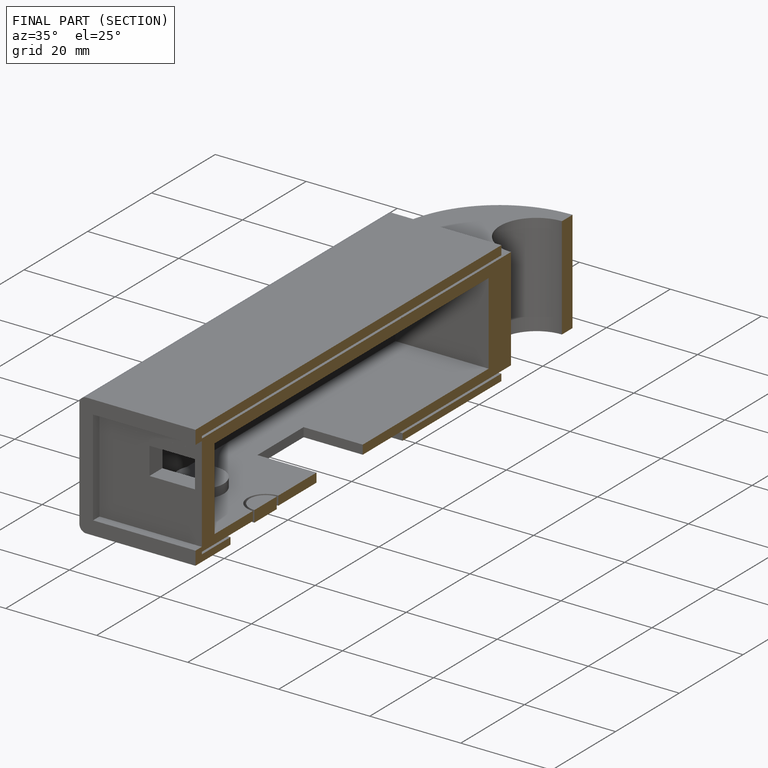
[diagram: finished part — half-section view (interior)]
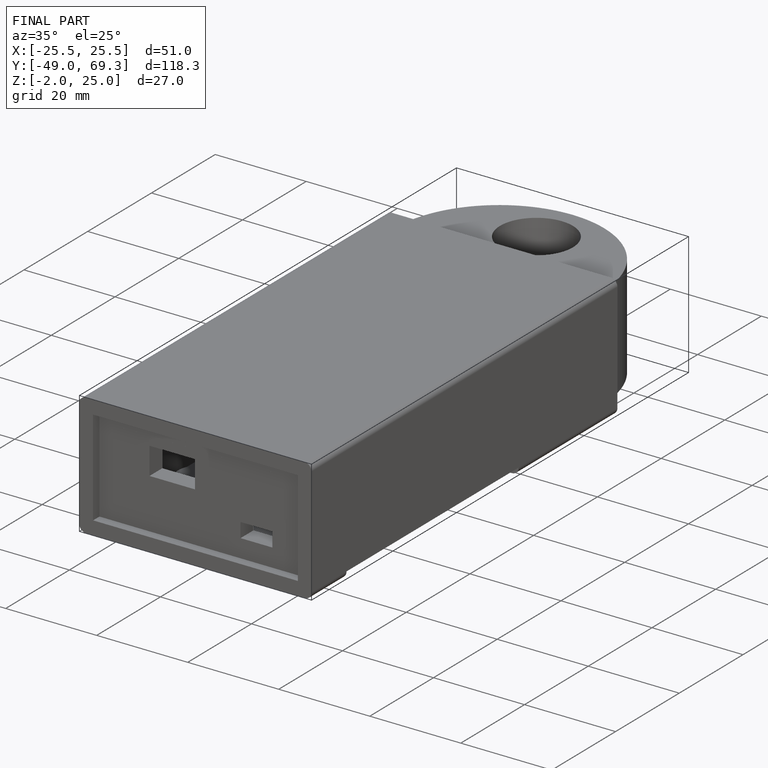
[diagram: finished part — iso view with bounding-box wireframe]
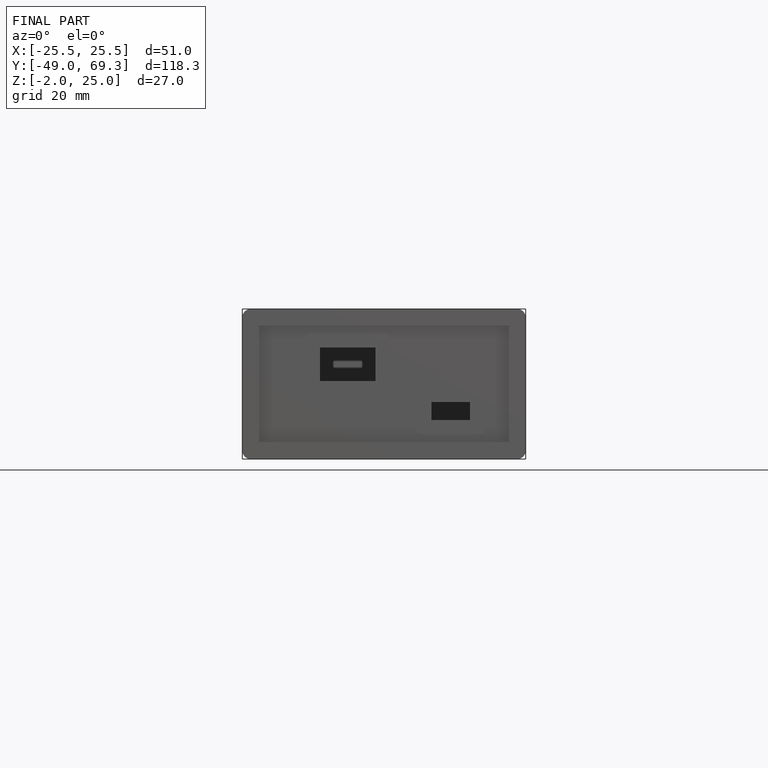
[diagram: finished part — front view with bounding-box wireframe]
